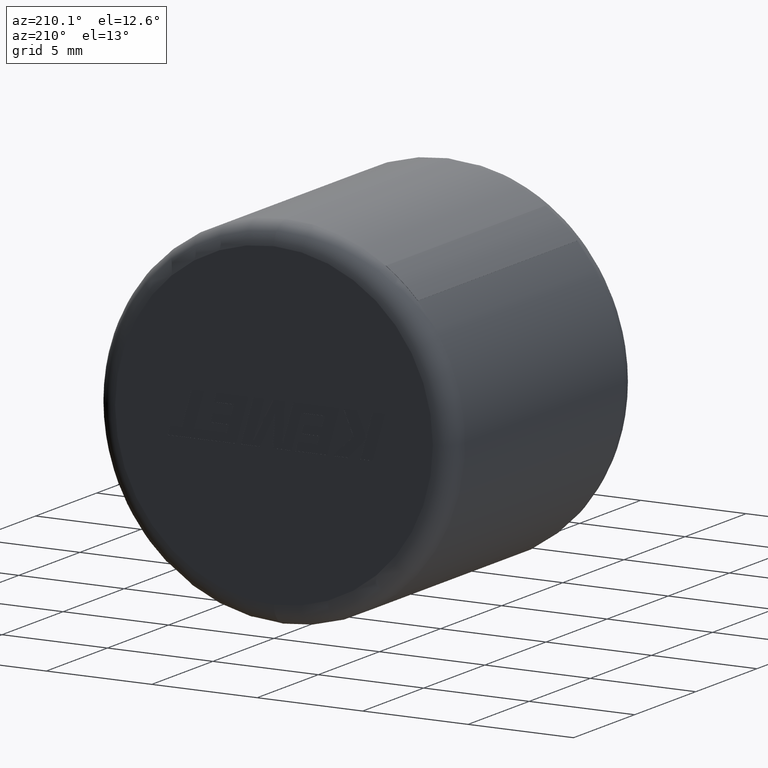
[diagram: clean part render]
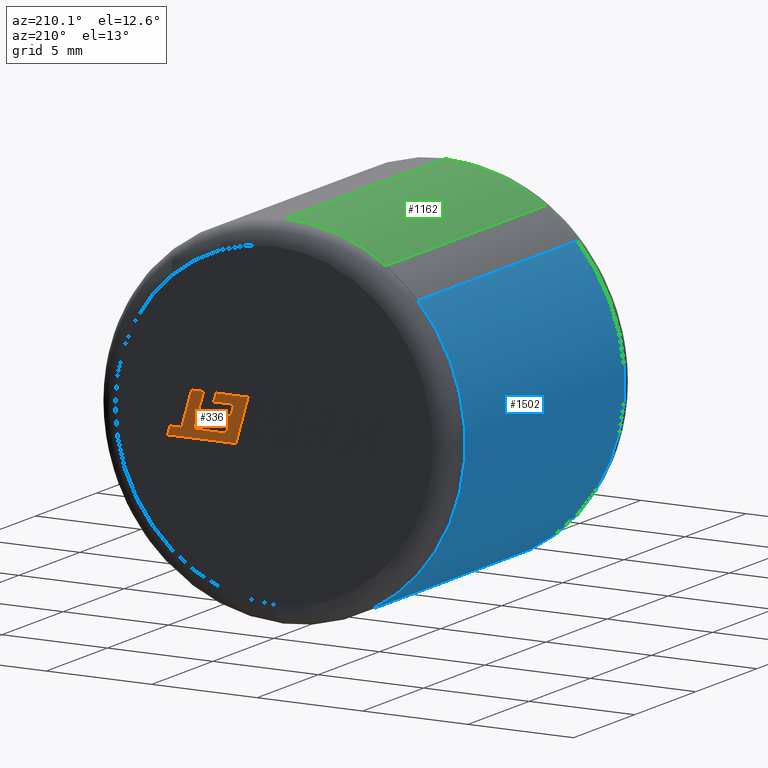
[diagram: same view with three faces highlighted in distinct colors, each labeled with its STEP entity id]
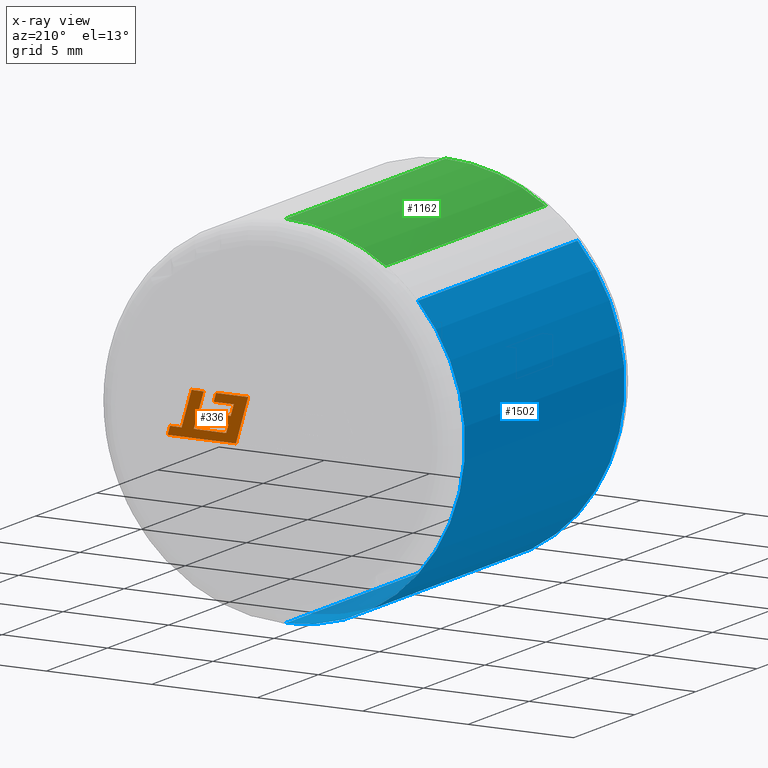
[diagram: x-ray of the same camera — body ghosted, the three highlighted faces saturated]
A machine part, auxiliary view with three faces highlighted in distinct colors.
The next image is the same camera in x-ray (body ghosted, the three faces saturated) — at least one of them is partly hidden behind the body in this view.
Their STEP definitions:

[orange] entity #336 — the highlighted planar face has unit normal (-0, 1, 0).
#1 = ORIENTED_EDGE ( 'NONE', *, *, #1229, .T. ) ;
#19 = DIRECTION ( 'NONE',  ( 0.2729786930695173900, 0.0000000000000000000, -0.9620200793798735500 ) ) ;
#41 = VERTEX_POINT ( 'NONE', #1182 ) ;
#47 = EDGE_CURVE ( 'NONE', #2338, #862, #2440, .T. ) ;
#63 = CARTESIAN_POINT ( 'NONE',  ( 4.931683720037595400, 14.99499999999999900, -0.5737970821254480000 ) ) ;
#64 = VECTOR ( 'NONE', #437, 1000.000000000000000 ) ;
#85 = DIRECTION ( 'NONE',  ( 1.000000000000000000, 0.0000000000000000000, -2.847054813160298500E-016 ) ) ;
#92 = CARTESIAN_POINT ( 'NONE',  ( 2.268643844463263300, 14.99499999999999900, -0.5792907574821812800 ) ) ;
#95 = VERTEX_POINT ( 'NONE', #1990 ) ;
#98 = CARTESIAN_POINT ( 'NONE',  ( 4.931683720037595400, 14.99499999999999900, -0.5737970821254480000 ) ) ;
#103 = VECTOR ( 'NONE', #910, 1000.000000000000100 ) ;
#124 = LINE ( 'NONE', #92, #1701 ) ;
#126 = VECTOR ( 'NONE', #1743, 999.9999999999998900 ) ;
#149 = CARTESIAN_POINT ( 'NONE',  ( 2.918285894870225900, 14.99499999999999900, 0.1683628157980139000 ) ) ;
#162 = LINE ( 'NONE', #939, #792 ) ;
#174 = EDGE_CURVE ( 'NONE', #297, #425, #1487, .T. ) ;
#200 = VECTOR ( 'NONE', #719, 1000.000000000000000 ) ;
#202 = EDGE_CURVE ( 'NONE', #2679, #1803, #2279, .T. ) ;
#207 = CARTESIAN_POINT ( 'NONE',  ( 3.805490025235814100, 14.99499999999999900, -0.5738409048522489200 ) ) ;
#255 = EDGE_CURVE ( 'NONE', #2479, #1975, #1223, .T. ) ;
#258 = CARTESIAN_POINT ( 'NONE',  ( 4.379680122707077800, 14.99499999999999900, -0.5738409048472185000 ) ) ;
#263 = ORIENTED_EDGE ( 'NONE', *, *, #2456, .T. ) ;
#273 = EDGE_CURVE ( 'NONE', #425, #1196, #648, .T. ) ;
#297 = VERTEX_POINT ( 'NONE', #149 ) ;
#300 = VECTOR ( 'NONE', #2021, 1000.000000000000000 ) ;
#336 = ADVANCED_FACE ( 'NONE', ( #1627 ), #1825, .T. ) ;
#351 = DIRECTION ( 'NONE',  ( -0.2764273280489769100, 0.0000000000000000000, 0.9610348236706635100 ) ) ;
#386 = CARTESIAN_POINT ( 'NONE',  ( 1.910155113253702200, 14.99499999999999900, 0.6693814386009966400 ) ) ;
#425 = VERTEX_POINT ( 'NONE', #1637 ) ;
#427 = VECTOR ( 'NONE', #2386, 1000.000000000000000 ) ;
#429 = AXIS2_PLACEMENT_3D ( 'NONE', #1213, #774, #1860 ) ;
#431 = DIRECTION ( 'NONE',  ( 0.9999999968487352000, 0.0000000000000000000, 7.938847109754407800E-005 ) ) ;
#437 = DIRECTION ( 'NONE',  ( 1.000000000000000000, 0.0000000000000000000, -2.506541263247940100E-016 ) ) ;
#539 = DIRECTION ( 'NONE',  ( -1.000000000000000000, 0.0000000000000000000, 1.246311255292171800E-016 ) ) ;
#602 = ORIENTED_EDGE ( 'NONE', *, *, #1297, .T. ) ;
#605 = CARTESIAN_POINT ( 'NONE',  ( 3.192556318522602200, 14.99499999999999900, -0.5766915026842742700 ) ) ;
#648 = LINE ( 'NONE', #2245, #2306 ) ;
#687 = CARTESIAN_POINT ( 'NONE',  ( 5.043569033575890300, 14.99499999999999900, -0.9631222229663530800 ) ) ;
#688 = ORIENTED_EDGE ( 'NONE', *, *, #202, .T. ) ;
#708 = LINE ( 'NONE', #605, #1742 ) ;
#715 = DIRECTION ( 'NONE',  ( -1.000000000000000000, 0.0000000000000000000, 2.506186073112944800E-016 ) ) ;
#719 = DIRECTION ( 'NONE',  ( -1.000000000000000000, 0.0000000000000000000, 2.284793946200968400E-016 ) ) ;
#724 = ORIENTED_EDGE ( 'NONE', *, *, #2317, .T. ) ;
#762 = LINE ( 'NONE', #1733, #1191 ) ;
#774 = DIRECTION ( 'NONE',  ( -0.0000000000000000000, 1.000000000000000000, 0.0000000000000000000 ) ) ;
#792 = VECTOR ( 'NONE', #1570, 1000.000000000000100 ) ;
#795 = EDGE_CURVE ( 'NONE', #1481, #95, #1411, .T. ) ;
#836 = CARTESIAN_POINT ( 'NONE',  ( 2.053187690916773900, 14.99499999999999900, 0.1683628157980141300 ) ) ;
#862 = VERTEX_POINT ( 'NONE', #2569 ) ;
#887 = ORIENTED_EDGE ( 'NONE', *, *, #795, .T. ) ;
#897 = VERTEX_POINT ( 'NONE', #2614 ) ;
#910 = DIRECTION ( 'NONE',  ( 0.2762033010288755300, 0.0000000000000000000, -0.9610992334305299400 ) ) ;
#919 = VECTOR ( 'NONE', #539, 1000.000000000000000 ) ;
#939 = CARTESIAN_POINT ( 'NONE',  ( 2.159524185522648100, 14.99499999999999900, -0.2042869498019199100 ) ) ;
#994 = VERTEX_POINT ( 'NONE', #1437 ) ;
#1011 = VECTOR ( 'NONE', #1755, 1000.000000000000000 ) ;
#1040 = LINE ( 'NONE', #2405, #2153 ) ;
#1082 = ORIENTED_EDGE ( 'NONE', *, *, #1869, .T. ) ;
#1138 = VECTOR ( 'NONE', #351, 1000.000000000000000 ) ;
#1182 = CARTESIAN_POINT ( 'NONE',  ( 2.053187690916773900, 14.99499999999999900, 0.1683628157980141300 ) ) ;
#1190 = CARTESIAN_POINT ( 'NONE',  ( 2.750351965824065400, 14.99499999999999900, 1.053028994543904400 ) ) ;
#1191 = VECTOR ( 'NONE', #2371, 1000.000000000000200 ) ;
#1196 = VERTEX_POINT ( 'NONE', #2313 ) ;
#1213 = CARTESIAN_POINT ( 'NONE',  ( 0.0000000000000000000, 14.99499999999999900, 0.0000000000000000000 ) ) ;
#1223 = LINE ( 'NONE', #98, #103 ) ;
#1229 = EDGE_CURVE ( 'NONE', #1677, #1872, #708, .T. ) ;
#1239 = EDGE_CURVE ( 'NONE', #862, #41, #1949, .T. ) ;
#1252 = CARTESIAN_POINT ( 'NONE',  ( 2.859214151411832100, 14.99499999999999900, 0.6693814386009964100 ) ) ;
#1266 = CARTESIAN_POINT ( 'NONE',  ( 2.859214151411832100, 14.99499999999999900, 0.6693814386009964100 ) ) ;
#1268 = LINE ( 'NONE', #258, #2173 ) ;
#1297 = EDGE_CURVE ( 'NONE', #994, #2479, #1268, .T. ) ;
#1301 = CARTESIAN_POINT ( 'NONE',  ( 2.750351965824065400, 14.99499999999999900, 1.053028994543904400 ) ) ;
#1307 = VECTOR ( 'NONE', #19, 1000.000000000000000 ) ;
#1342 = ORIENTED_EDGE ( 'NONE', *, *, #2483, .T. ) ;
#1411 = LINE ( 'NONE', #2480, #1138 ) ;
#1426 = EDGE_CURVE ( 'NONE', #897, #1677, #124, .T. ) ;
#1437 = CARTESIAN_POINT ( 'NONE',  ( 4.379680122707077800, 14.99499999999999900, -0.5738409048472185000 ) ) ;
#1481 = VERTEX_POINT ( 'NONE', #1827 ) ;
#1487 = LINE ( 'NONE', #1751, #427 ) ;
#1489 = ORIENTED_EDGE ( 'NONE', *, *, #2126, .T. ) ;
#1559 = ORIENTED_EDGE ( 'NONE', *, *, #1426, .T. ) ;
#1561 = DIRECTION ( 'NONE',  ( 0.9999960426590096500, 0.0000000000000000000, 0.002813301676022722900 ) ) ;
#1570 = DIRECTION ( 'NONE',  ( 0.2793947940814914300, 0.0000000000000000000, -0.9601763114346035800 ) ) ;
#1582 = LINE ( 'NONE', #2425, #1011 ) ;
#1595 = CARTESIAN_POINT ( 'NONE',  ( 3.192556318522602200, 14.99499999999999900, -0.5766915026842742700 ) ) ;
#1627 = FACE_OUTER_BOUND ( 'NONE', #2411, .T. ) ;
#1636 = VERTEX_POINT ( 'NONE', #1190 ) ;
#1637 = CARTESIAN_POINT ( 'NONE',  ( 3.024744995834479400, 14.99499999999999900, -0.2042869498019201400 ) ) ;
#1651 = ORIENTED_EDGE ( 'NONE', *, *, #255, .T. ) ;
#1677 = VERTEX_POINT ( 'NONE', #1595 ) ;
#1701 = VECTOR ( 'NONE', #1561, 999.9999999999998900 ) ;
#1733 = CARTESIAN_POINT ( 'NONE',  ( 3.805490025235814100, 14.99499999999999900, -0.5738409048522489200 ) ) ;
#1742 = VECTOR ( 'NONE', #2321, 1000.000000000000200 ) ;
#1743 = DIRECTION ( 'NONE',  ( 0.2745159998572669300, 0.0000000000000000000, -0.9615825319869143500 ) ) ;
#1751 = CARTESIAN_POINT ( 'NONE',  ( 2.918285894870225900, 14.99499999999999900, 0.1683628157980139000 ) ) ;
#1755 = DIRECTION ( 'NONE',  ( 0.2762437428917315400, 0.0000000000000000000, -0.9610876102172824000 ) ) ;
#1803 = VERTEX_POINT ( 'NONE', #2460 ) ;
#1818 = CARTESIAN_POINT ( 'NONE',  ( 5.043569033575890300, 14.99499999999999900, -0.9631222229663530800 ) ) ;
#1825 = PLANE ( 'NONE',  #429 ) ;
#1827 = CARTESIAN_POINT ( 'NONE',  ( 1.807006385584198200, 14.99499999999999900, -0.9631222229663527500 ) ) ;
#1843 = ORIENTED_EDGE ( 'NONE', *, *, #2265, .T. ) ;
#1860 = DIRECTION ( 'NONE',  ( 0.0000000000000000000, -0.0000000000000000000, 1.000000000000000000 ) ) ;
#1869 = EDGE_CURVE ( 'NONE', #41, #297, #2095, .T. ) ;
#1872 = VERTEX_POINT ( 'NONE', #207 ) ;
#1932 = ORIENTED_EDGE ( 'NONE', *, *, #2628, .T. ) ;
#1949 = LINE ( 'NONE', #386, #126 ) ;
#1972 = ORIENTED_EDGE ( 'NONE', *, *, #273, .T. ) ;
#1975 = VERTEX_POINT ( 'NONE', #687 ) ;
#1990 = CARTESIAN_POINT ( 'NONE',  ( 1.227090569557494300, 14.99499999999999900, 1.053028994543904900 ) ) ;
#2021 = DIRECTION ( 'NONE',  ( 1.000000000000000000, 0.0000000000000000000, -3.775570415932256000E-016 ) ) ;
#2080 = ORIENTED_EDGE ( 'NONE', *, *, #174, .T. ) ;
#2095 = LINE ( 'NONE', #836, #64 ) ;
#2126 = EDGE_CURVE ( 'NONE', #1975, #1481, #2698, .T. ) ;
#2138 = ORIENTED_EDGE ( 'NONE', *, *, #47, .T. ) ;
#2153 = VECTOR ( 'NONE', #85, 1000.000000000000000 ) ;
#2173 = VECTOR ( 'NONE', #431, 1000.000000000000100 ) ;
#2245 = CARTESIAN_POINT ( 'NONE',  ( 3.024744995834479400, 14.99499999999999900, -0.2042869498019201400 ) ) ;
#2265 = EDGE_CURVE ( 'NONE', #1636, #2338, #2477, .T. ) ;
#2275 = CARTESIAN_POINT ( 'NONE',  ( 3.337746768091752500, 14.99499999999999900, 1.053028994543904200 ) ) ;
#2279 = LINE ( 'NONE', #2622, #300 ) ;
#2306 = VECTOR ( 'NONE', #715, 1000.000000000000000 ) ;
#2313 = CARTESIAN_POINT ( 'NONE',  ( 2.159524185522648100, 14.99499999999999900, -0.2042869498019199100 ) ) ;
#2317 = EDGE_CURVE ( 'NONE', #1872, #2679, #762, .T. ) ;
#2321 = DIRECTION ( 'NONE',  ( 0.9999891854650020400, 0.0000000000000000000, 0.004650693823678137000 ) ) ;
#2338 = VERTEX_POINT ( 'NONE', #1266 ) ;
#2371 = DIRECTION ( 'NONE',  ( -0.2763173343569915700, 0.0000000000000000000, 0.9610664548998921800 ) ) ;
#2386 = DIRECTION ( 'NONE',  ( 0.2746918797667231600, 0.0000000000000000000, -0.9615323037684299100 ) ) ;
#2405 = CARTESIAN_POINT ( 'NONE',  ( 1.227090569557494300, 14.99499999999999900, 1.053028994543904900 ) ) ;
#2411 = EDGE_LOOP ( 'NONE', ( #1559, #1, #724, #688, #1342, #602, #1651, #1489, #887, #263, #1843, #2138, #2743, #1082, #2080, #1972, #1932 ) ) ;
#2425 = CARTESIAN_POINT ( 'NONE',  ( 3.912071732558238600, 14.99499999999999900, 1.053028994543904000 ) ) ;
#2440 = LINE ( 'NONE', #1252, #200 ) ;
#2456 = EDGE_CURVE ( 'NONE', #95, #1636, #1040, .T. ) ;
#2460 = CARTESIAN_POINT ( 'NONE',  ( 3.912071732558238600, 14.99499999999999900, 1.053028994543904000 ) ) ;
#2477 = LINE ( 'NONE', #1301, #1307 ) ;
#2479 = VERTEX_POINT ( 'NONE', #63 ) ;
#2480 = CARTESIAN_POINT ( 'NONE',  ( 1.807006385584198200, 14.99499999999999900, -0.9631222229663527500 ) ) ;
#2483 = EDGE_CURVE ( 'NONE', #1803, #994, #1582, .T. ) ;
#2569 = CARTESIAN_POINT ( 'NONE',  ( 1.910155113253702200, 14.99499999999999900, 0.6693814386009966400 ) ) ;
#2614 = CARTESIAN_POINT ( 'NONE',  ( 2.268643844463263300, 14.99499999999999900, -0.5792907574821812800 ) ) ;
#2622 = CARTESIAN_POINT ( 'NONE',  ( 3.337746768091752500, 14.99499999999999900, 1.053028994543904200 ) ) ;
#2628 = EDGE_CURVE ( 'NONE', #1196, #897, #162, .T. ) ;
#2679 = VERTEX_POINT ( 'NONE', #2275 ) ;
#2698 = LINE ( 'NONE', #1818, #919 ) ;
#2743 = ORIENTED_EDGE ( 'NONE', *, *, #1239, .T. ) ;

[blue] entity #1502 — the highlighted cylindrical surface (partial cylindrical patch) has radius 8.5 mm, axis along (-0, -1, -0).
#111 = CARTESIAN_POINT ( 'NONE',  ( 0.0000000000000000000, 15.00000000000000000, 0.0000000000000000000 ) ) ;
#179 = EDGE_LOOP ( 'NONE', ( #828, #1505, #579, #271 ) ) ;
#184 = EDGE_CURVE ( 'NONE', #2201, #2674, #423, .T. ) ;
#271 = ORIENTED_EDGE ( 'NONE', *, *, #1996, .F. ) ;
#288 = DIRECTION ( 'NONE',  ( 0.0000000000000000000, 0.0000000000000000000, 1.000000000000000000 ) ) ;
#330 = VECTOR ( 'NONE', #2611, 1000.000000000000000 ) ;
#381 = VECTOR ( 'NONE', #1777, 1000.000000000000000 ) ;
#399 = CARTESIAN_POINT ( 'NONE',  ( -6.257209992416755500, 14.03250000000000100, 5.753027299674486400 ) ) ;
#409 = CARTESIAN_POINT ( 'NONE',  ( 0.0000000000000000000, 0.9674999999999995800, -8.500000000000000000 ) ) ;
#423 = CIRCLE ( 'NONE', #1631, 8.500000000000000000 ) ;
#514 = CARTESIAN_POINT ( 'NONE',  ( 0.0000000000000000000, 15.00000000000000000, -8.500000000000000000 ) ) ;
#579 = ORIENTED_EDGE ( 'NONE', *, *, #184, .T. ) ;
#828 = ORIENTED_EDGE ( 'NONE', *, *, #1370, .T. ) ;
#884 = LINE ( 'NONE', #1314, #330 ) ;
#918 = VERTEX_POINT ( 'NONE', #1554 ) ;
#1037 = CYLINDRICAL_SURFACE ( 'NONE', #1682, 8.500000000000000000 ) ;
#1133 = LINE ( 'NONE', #514, #381 ) ;
#1165 = DIRECTION ( 'NONE',  ( 0.0000000000000000000, 0.0000000000000000000, 1.000000000000000000 ) ) ;
#1314 = CARTESIAN_POINT ( 'NONE',  ( -6.257209992416755500, 14.03249999999999700, 5.753027299674486400 ) ) ;
#1370 = EDGE_CURVE ( 'NONE', #2764, #918, #2384, .T. ) ;
#1387 = EDGE_CURVE ( 'NONE', #918, #2201, #1133, .T. ) ;
#1502 = ADVANCED_FACE ( 'NONE', ( #2505 ), #1037, .T. ) ;
#1505 = ORIENTED_EDGE ( 'NONE', *, *, #1387, .T. ) ;
#1528 = DIRECTION ( 'NONE',  ( -0.0000000000000000000, -1.000000000000000000, -0.0000000000000000000 ) ) ;
#1554 = CARTESIAN_POINT ( 'NONE',  ( 0.0000000000000000000, 14.03250000000000100, -8.500000000000000000 ) ) ;
#1631 = AXIS2_PLACEMENT_3D ( 'NONE', #2448, #1810, #1165 ) ;
#1682 = AXIS2_PLACEMENT_3D ( 'NONE', #111, #2055, #2274 ) ;
#1777 = DIRECTION ( 'NONE',  ( -0.0000000000000000000, -1.000000000000000000, -0.0000000000000000000 ) ) ;
#1810 = DIRECTION ( 'NONE',  ( 0.0000000000000000000, 1.000000000000000000, 0.0000000000000000000 ) ) ;
#1996 = EDGE_CURVE ( 'NONE', #2764, #2674, #884, .T. ) ;
#2043 = AXIS2_PLACEMENT_3D ( 'NONE', #2171, #1528, #288 ) ;
#2055 = DIRECTION ( 'NONE',  ( -0.0000000000000000000, -1.000000000000000000, -0.0000000000000000000 ) ) ;
#2171 = CARTESIAN_POINT ( 'NONE',  ( 0.0000000000000000000, 14.03250000000000100, 0.0000000000000000000 ) ) ;
#2201 = VERTEX_POINT ( 'NONE', #409 ) ;
#2274 = DIRECTION ( 'NONE',  ( 0.0000000000000000000, 0.0000000000000000000, -1.000000000000000000 ) ) ;
#2384 = CIRCLE ( 'NONE', #2043, 8.500000000000000000 ) ;
#2448 = CARTESIAN_POINT ( 'NONE',  ( 0.0000000000000000000, 0.9674999999999995800, 0.0000000000000000000 ) ) ;
#2505 = FACE_OUTER_BOUND ( 'NONE', #179, .T. ) ;
#2508 = CARTESIAN_POINT ( 'NONE',  ( -6.257209992416758100, 0.9674999999999995800, 5.753027299674484700 ) ) ;
#2611 = DIRECTION ( 'NONE',  ( 0.0000000000000000000, -1.000000000000000000, 0.0000000000000000000 ) ) ;
#2674 = VERTEX_POINT ( 'NONE', #2508 ) ;
#2764 = VERTEX_POINT ( 'NONE', #399 ) ;

[green] entity #1162 — the highlighted cylindrical surface (partial cylindrical patch) has radius 8.5 mm, axis along (-0, -1, -0).
#122 = DIRECTION ( 'NONE',  ( 0.0000000000000000000, 0.0000000000000000000, 1.000000000000000000 ) ) ;
#142 = DIRECTION ( 'NONE',  ( 0.0000000000000000000, 1.000000000000000000, 0.0000000000000000000 ) ) ;
#205 = ORIENTED_EDGE ( 'NONE', *, *, #2219, .F. ) ;
#307 = CARTESIAN_POINT ( 'NONE',  ( -4.743600123693314100, 14.03250000000000100, 7.053244492182075800 ) ) ;
#354 = VERTEX_POINT ( 'NONE', #541 ) ;
#355 = CARTESIAN_POINT ( 'NONE',  ( 0.0000000000000000000, 0.9674999999999995800, 0.0000000000000000000 ) ) ;
#541 = CARTESIAN_POINT ( 'NONE',  ( 1.040949779275250100E-015, 14.03250000000000100, 8.500000000000000000 ) ) ;
#610 = CARTESIAN_POINT ( 'NONE',  ( -4.743600123693314100, 0.9675000000000013600, 7.053244492182075800 ) ) ;
#764 = CARTESIAN_POINT ( 'NONE',  ( 0.0000000000000000000, 14.03250000000000100, 0.0000000000000000000 ) ) ;
#779 = VERTEX_POINT ( 'NONE', #2600 ) ;
#827 = ORIENTED_EDGE ( 'NONE', *, *, #2670, .T. ) ;
#917 = CIRCLE ( 'NONE', #1662, 8.500000000000000000 ) ;
#937 = AXIS2_PLACEMENT_3D ( 'NONE', #2533, #1033, #1246 ) ;
#1033 = DIRECTION ( 'NONE',  ( -0.0000000000000000000, -1.000000000000000000, -0.0000000000000000000 ) ) ;
#1162 = ADVANCED_FACE ( 'NONE', ( #2612 ), #2551, .T. ) ;
#1246 = DIRECTION ( 'NONE',  ( 0.0000000000000000000, 0.0000000000000000000, -1.000000000000000000 ) ) ;
#1427 = CARTESIAN_POINT ( 'NONE',  ( 1.040949779275250100E-015, 15.00000000000000000, 8.500000000000000000 ) ) ;
#1434 = VERTEX_POINT ( 'NONE', #307 ) ;
#1475 = ORIENTED_EDGE ( 'NONE', *, *, #2738, .F. ) ;
#1638 = VERTEX_POINT ( 'NONE', #2064 ) ;
#1662 = AXIS2_PLACEMENT_3D ( 'NONE', #355, #2730, #2088 ) ;
#1802 = DIRECTION ( 'NONE',  ( -0.0000000000000000000, -1.000000000000000000, -0.0000000000000000000 ) ) ;
#2009 = AXIS2_PLACEMENT_3D ( 'NONE', #764, #1802, #122 ) ;
#2064 = CARTESIAN_POINT ( 'NONE',  ( -4.743600123693313200, 0.9674999999999995800, 7.053244492182076700 ) ) ;
#2088 = DIRECTION ( 'NONE',  ( 0.0000000000000000000, 0.0000000000000000000, 1.000000000000000000 ) ) ;
#2219 = EDGE_CURVE ( 'NONE', #1638, #1434, #2391, .T. ) ;
#2358 = CIRCLE ( 'NONE', #2009, 8.500000000000000000 ) ;
#2391 = LINE ( 'NONE', #610, #2395 ) ;
#2395 = VECTOR ( 'NONE', #142, 1000.000000000000000 ) ;
#2509 = ORIENTED_EDGE ( 'NONE', *, *, #2572, .T. ) ;
#2518 = DIRECTION ( 'NONE',  ( -0.0000000000000000000, -1.000000000000000000, -0.0000000000000000000 ) ) ;
#2532 = LINE ( 'NONE', #1427, #2693 ) ;
#2533 = CARTESIAN_POINT ( 'NONE',  ( 0.0000000000000000000, 15.00000000000000000, 0.0000000000000000000 ) ) ;
#2551 = CYLINDRICAL_SURFACE ( 'NONE', #937, 8.500000000000000000 ) ;
#2560 = EDGE_LOOP ( 'NONE', ( #1475, #2509, #205, #827 ) ) ;
#2572 = EDGE_CURVE ( 'NONE', #354, #1434, #2358, .T. ) ;
#2600 = CARTESIAN_POINT ( 'NONE',  ( 1.040949779275250100E-015, 0.9674999999999995800, 8.500000000000000000 ) ) ;
#2612 = FACE_OUTER_BOUND ( 'NONE', #2560, .T. ) ;
#2670 = EDGE_CURVE ( 'NONE', #1638, #779, #917, .T. ) ;
#2693 = VECTOR ( 'NONE', #2518, 1000.000000000000000 ) ;
#2730 = DIRECTION ( 'NONE',  ( 0.0000000000000000000, 1.000000000000000000, 0.0000000000000000000 ) ) ;
#2738 = EDGE_CURVE ( 'NONE', #354, #779, #2532, .T. ) ;